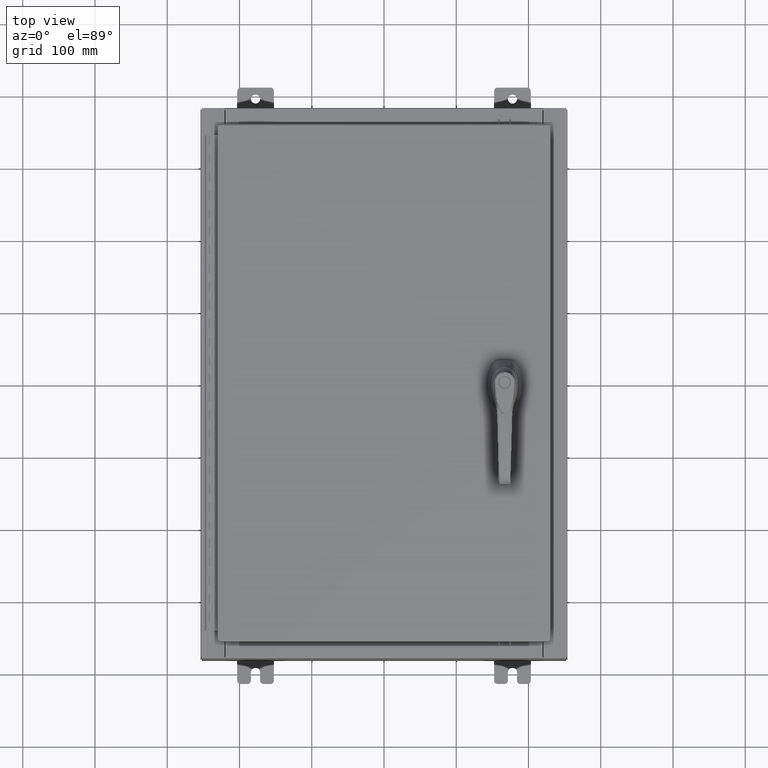
[diagram: clean part render]
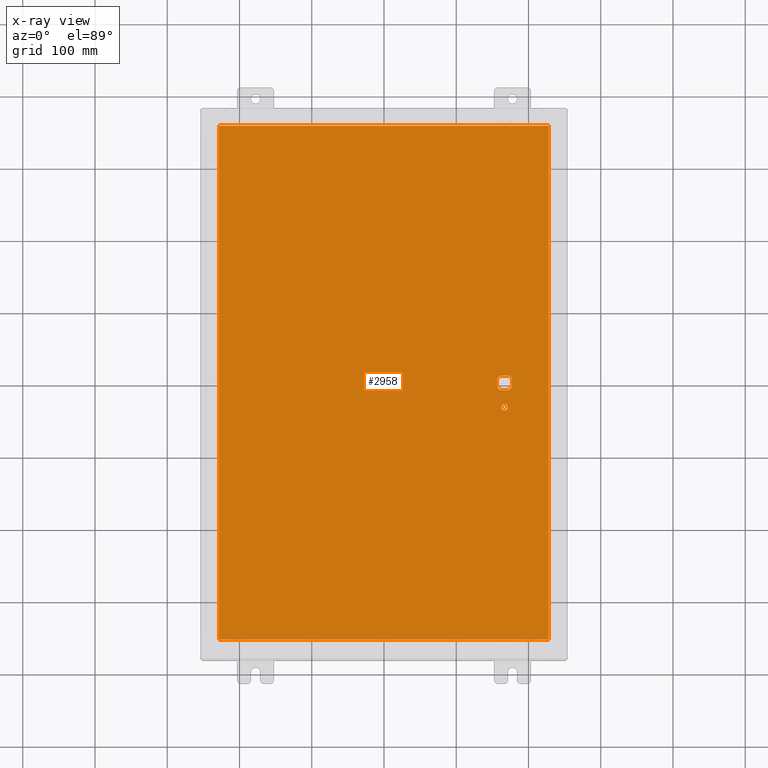
[diagram: x-ray — body ghosted, one internal face saturated and labeled with its STEP entity id]
A machine part, top view, then the same camera in x-ray: the body is ghosted and one INTERNAL B-rep face — a face not visible from any outside direction — is saturated and labeled: STEP entity #2958.
In plain terms, the highlighted planar face has unit normal (0, 0, -1).
Its self-contained STEP definition (entity closure, byte-faithful):
#253 = VERTEX_POINT ( 'NONE', #98581 ) ;
#757 = CARTESIAN_POINT ( 'NONE',  ( 6.578000000000000300, 0.0000000000000000000, -0.07470000000000003000 ) ) ;
#2958 = ADVANCED_FACE ( 'NONE', ( #58299, #52591, #76732 ), #44896, .T. ) ;
#3672 = CARTESIAN_POINT ( 'NONE',  ( 6.749500000000001200, -1.338000000000000100, -0.07470000000000003000 ) ) ;
#4334 = EDGE_CURVE ( 'NONE', #253, #69454, #114709, .T. ) ;
#4936 = VECTOR ( 'NONE', #6776, 39.37007874015748100 ) ;
#6776 = DIRECTION ( 'NONE',  ( 0.0000000000000000000, -1.000000000000000000, 0.0000000000000000000 ) ) ;
#7493 = ORIENTED_EDGE ( 'NONE', *, *, #8429, .T. ) ;
#8429 = EDGE_CURVE ( 'NONE', #89478, #253, #117313, .T. ) ;
#8764 = DIRECTION ( 'NONE',  ( -1.000000000000000000, 0.0000000000000000000, 0.0000000000000000000 ) ) ;
#9222 = CIRCLE ( 'NONE', #43692, 0.4499999999999156900 ) ;
#9872 = DIRECTION ( 'NONE',  ( -1.000000000000000000, 0.0000000000000000000, 0.0000000000000000000 ) ) ;
#13271 = LINE ( 'NONE', #47715, #85445 ) ;
#13378 = AXIS2_PLACEMENT_3D ( 'NONE', #117139, #62978, #8764 ) ;
#13846 = ORIENTED_EDGE ( 'NONE', *, *, #4334, .T. ) ;
#14798 = VERTEX_POINT ( 'NONE', #114743 ) ;
#15091 = DIRECTION ( 'NONE',  ( -0.0000000000000000000, -0.0000000000000000000, 1.000000000000000000 ) ) ;
#15869 = CARTESIAN_POINT ( 'NONE',  ( 6.175000000000075300, 0.0000000000000000000, -0.07470000000000003000 ) ) ;
#17989 = DIRECTION ( 'NONE',  ( -1.000000000000000000, 0.0000000000000000000, -0.0000000000000000000 ) ) ;
#19645 = CIRCLE ( 'NONE', #93595, 0.1715000000000000700 ) ;
#20171 = CARTESIAN_POINT ( 'NONE',  ( 0.0000000000000000000, 0.4029999999999252000, -0.07470000000000003000 ) ) ;
#21082 = DIRECTION ( 'NONE',  ( 0.0000000000000000000, -1.000000000000000000, 0.0000000000000000000 ) ) ;
#21316 = VECTOR ( 'NONE', #34606, 39.37007874015748100 ) ;
#24656 = EDGE_LOOP ( 'NONE', ( #88125, #110943, #117227, #102709, #106809, #102589, #7493, #13846 ) ) ;
#26691 = DIRECTION ( 'NONE',  ( -0.0000000000000000000, -0.0000000000000000000, 1.000000000000000000 ) ) ;
#28300 = EDGE_CURVE ( 'NONE', #58569, #99776, #68863, .T. ) ;
#28898 = CARTESIAN_POINT ( 'NONE',  ( -8.990299999999996000, -14.00629999999999600, -0.07470000000000000300 ) ) ;
#29022 = LINE ( 'NONE', #15869, #4936 ) ;
#29412 = VERTEX_POINT ( 'NONE', #94577 ) ;
#30600 = ORIENTED_EDGE ( 'NONE', *, *, #101388, .F. ) ;
#31012 = DIRECTION ( 'NONE',  ( 1.000000000000000000, -0.0000000000000000000, -0.0000000000000000000 ) ) ;
#32361 = CARTESIAN_POINT ( 'NONE',  ( 6.578000000000000300, 0.0000000000000000000, -0.07470000000000003000 ) ) ;
#32512 = EDGE_LOOP ( 'NONE', ( #103044, #30600, #70485, #74865 ) ) ;
#33312 = DIRECTION ( 'NONE',  ( -0.0000000000000000000, -0.0000000000000000000, 1.000000000000000000 ) ) ;
#33365 = CARTESIAN_POINT ( 'NONE',  ( 6.778227370756310300, 0.4029999999999250300, -0.07470000000000003000 ) ) ;
#34606 = DIRECTION ( 'NONE',  ( 1.000000000000000000, 0.0000000000000000000, 0.0000000000000000000 ) ) ;
#40575 = EDGE_CURVE ( 'NONE', #63951, #44774, #19645, .T. ) ;
#40617 = AXIS2_PLACEMENT_3D ( 'NONE', #757, #64067, #9872 ) ;
#41114 = EDGE_CURVE ( 'NONE', #69454, #111084, #57813, .T. ) ;
#41437 = DIRECTION ( 'NONE',  ( -1.000000000000000000, 8.881784197001256300E-016, 0.0000000000000000000 ) ) ;
#41940 = VECTOR ( 'NONE', #97984, 39.37007874015748100 ) ;
#43692 = AXIS2_PLACEMENT_3D ( 'NONE', #69305, #15091, #78411 ) ;
#44280 = CARTESIAN_POINT ( 'NONE',  ( 6.377772629243691100, 0.4029999999999252000, -0.07470000000000003000 ) ) ;
#44744 = VECTOR ( 'NONE', #21082, 39.37007874015748100 ) ;
#44774 = VERTEX_POINT ( 'NONE', #3672 ) ;
#44896 = PLANE ( 'NONE',  #52294 ) ;
#45921 = DIRECTION ( 'NONE',  ( -1.000000000000000000, -0.0000000000000000000, -0.0000000000000000000 ) ) ;
#47715 = CARTESIAN_POINT ( 'NONE',  ( 6.980999999999926200, 0.0000000000000000000, -0.07470000000000003000 ) ) ;
#50922 = VECTOR ( 'NONE', #31012, 39.37007874015748100 ) ;
#51404 = CARTESIAN_POINT ( 'NONE',  ( 6.980999999999926200, 0.2002273707563080300, -0.07470000000000003000 ) ) ;
#52294 = AXIS2_PLACEMENT_3D ( 'NONE', #63117, #72220, #17989 ) ;
#52591 = FACE_OUTER_BOUND ( 'NONE', #32512, .T. ) ;
#53726 = LINE ( 'NONE', #76116, #50922 ) ;
#54910 = CARTESIAN_POINT ( 'NONE',  ( 6.175000000000075300, -0.2002273707563079800, -0.07470000000000003000 ) ) ;
#55108 = VERTEX_POINT ( 'NONE', #64147 ) ;
#56943 = LINE ( 'NONE', #109192, #80976 ) ;
#57813 = CIRCLE ( 'NONE', #40617, 0.4499999999999156900 ) ;
#58299 = FACE_BOUND ( 'NONE', #73527, .T. ) ;
#58569 = VERTEX_POINT ( 'NONE', #104214 ) ;
#60497 = CARTESIAN_POINT ( 'NONE',  ( 6.980999999999926200, -0.2002273707563080300, -0.07470000000000003000 ) ) ;
#61499 = CARTESIAN_POINT ( 'NONE',  ( 0.0000000000000000000, -0.4029999999999252000, -0.07470000000000003000 ) ) ;
#62978 = DIRECTION ( 'NONE',  ( -0.0000000000000000000, -0.0000000000000000000, 1.000000000000000000 ) ) ;
#63117 = CARTESIAN_POINT ( 'NONE',  ( 0.0000000000000000000, 0.0000000000000000000, -0.07470000000000000300 ) ) ;
#63148 = LINE ( 'NONE', #70731, #41940 ) ;
#63951 = VERTEX_POINT ( 'NONE', #74996 ) ;
#64067 = DIRECTION ( 'NONE',  ( -0.0000000000000000000, -0.0000000000000000000, 1.000000000000000000 ) ) ;
#64147 = CARTESIAN_POINT ( 'NONE',  ( 6.175000000000075300, 0.2002273707563080300, -0.07470000000000003000 ) ) ;
#65008 = EDGE_CURVE ( 'NONE', #29412, #58569, #56943, .T. ) ;
#65260 = DIRECTION ( 'NONE',  ( -1.000000000000000000, 0.0000000000000000000, 0.0000000000000000000 ) ) ;
#65526 = CIRCLE ( 'NONE', #13378, 0.1715000000000000700 ) ;
#66502 = CARTESIAN_POINT ( 'NONE',  ( 6.778227370756310300, -0.4029999999999252000, -0.07470000000000003000 ) ) ;
#68863 = LINE ( 'NONE', #110854, #44744 ) ;
#69305 = CARTESIAN_POINT ( 'NONE',  ( 6.578000000000000300, 0.0000000000000000000, -0.07470000000000003000 ) ) ;
#69454 = VERTEX_POINT ( 'NONE', #66502 ) ;
#70485 = ORIENTED_EDGE ( 'NONE', *, *, #28300, .F. ) ;
#70731 = CARTESIAN_POINT ( 'NONE',  ( 8.990300000000001300, -14.00629999999999800, -0.07470000000000076600 ) ) ;
#71537 = AXIS2_PLACEMENT_3D ( 'NONE', #32361, #95615, #41437 ) ;
#72220 = DIRECTION ( 'NONE',  ( 0.0000000000000000000, 0.0000000000000000000, -1.000000000000000000 ) ) ;
#73527 = EDGE_LOOP ( 'NONE', ( #83289, #91468 ) ) ;
#74865 = ORIENTED_EDGE ( 'NONE', *, *, #65008, .F. ) ;
#74996 = CARTESIAN_POINT ( 'NONE',  ( 6.406500000000000300, -1.338000000000000100, -0.07470000000000003000 ) ) ;
#76116 = CARTESIAN_POINT ( 'NONE',  ( -8.990299999999996000, -14.00629999999999800, -0.07469999999999800400 ) ) ;
#76732 = FACE_BOUND ( 'NONE', #24656, .T. ) ;
#76802 = EDGE_CURVE ( 'NONE', #87197, #55108, #108275, .T. ) ;
#78411 = DIRECTION ( 'NONE',  ( -1.000000000000000000, 0.0000000000000000000, 0.0000000000000000000 ) ) ;
#78992 = EDGE_CURVE ( 'NONE', #44774, #63951, #65526, .T. ) ;
#80833 = CARTESIAN_POINT ( 'NONE',  ( 6.578000000000000300, -1.338000000000000100, -0.07470000000000003000 ) ) ;
#80976 = VECTOR ( 'NONE', #45921, 39.37007874015748100 ) ;
#82777 = VECTOR ( 'NONE', #65260, 39.37007874015748100 ) ;
#83289 = ORIENTED_EDGE ( 'NONE', *, *, #78992, .T. ) ;
#83767 = VERTEX_POINT ( 'NONE', #33365 ) ;
#85445 = VECTOR ( 'NONE', #111008, 39.37007874015748100 ) ;
#87197 = VERTEX_POINT ( 'NONE', #44280 ) ;
#87442 = CARTESIAN_POINT ( 'NONE',  ( 6.578000000000000300, 0.0000000000000000000, -0.07470000000000003000 ) ) ;
#88125 = ORIENTED_EDGE ( 'NONE', *, *, #41114, .T. ) ;
#88812 = VERTEX_POINT ( 'NONE', #51404 ) ;
#89478 = VERTEX_POINT ( 'NONE', #54910 ) ;
#89892 = DIRECTION ( 'NONE',  ( -1.000000000000000000, 0.0000000000000000000, 0.0000000000000000000 ) ) ;
#91468 = ORIENTED_EDGE ( 'NONE', *, *, #40575, .T. ) ;
#93015 = EDGE_CURVE ( 'NONE', #14798, #29412, #63148, .T. ) ;
#93595 = AXIS2_PLACEMENT_3D ( 'NONE', #80833, #26691, #89892 ) ;
#94132 = EDGE_CURVE ( 'NONE', #88812, #83767, #9222, .T. ) ;
#94464 = EDGE_CURVE ( 'NONE', #83767, #87197, #109675, .T. ) ;
#94577 = CARTESIAN_POINT ( 'NONE',  ( 8.990299999999999500, 14.00629999999999800, -0.07470000000000000300 ) ) ;
#95615 = DIRECTION ( 'NONE',  ( -0.0000000000000000000, -0.0000000000000000000, 1.000000000000000000 ) ) ;
#96568 = DIRECTION ( 'NONE',  ( -1.000000000000000000, 0.0000000000000000000, 0.0000000000000000000 ) ) ;
#97984 = DIRECTION ( 'NONE',  ( 0.0000000000000000000, 1.000000000000000000, 0.0000000000000000000 ) ) ;
#98581 = CARTESIAN_POINT ( 'NONE',  ( 6.377772629243691100, -0.4029999999999250300, -0.07470000000000003000 ) ) ;
#99776 = VERTEX_POINT ( 'NONE', #28898 ) ;
#101388 = EDGE_CURVE ( 'NONE', #99776, #14798, #53726, .T. ) ;
#102589 = ORIENTED_EDGE ( 'NONE', *, *, #107391, .T. ) ;
#102709 = ORIENTED_EDGE ( 'NONE', *, *, #94464, .T. ) ;
#103044 = ORIENTED_EDGE ( 'NONE', *, *, #93015, .F. ) ;
#103856 = AXIS2_PLACEMENT_3D ( 'NONE', #87442, #33312, #96568 ) ;
#104214 = CARTESIAN_POINT ( 'NONE',  ( -8.990299999999997700, 14.00629999999999800, -0.07470000000000000300 ) ) ;
#106809 = ORIENTED_EDGE ( 'NONE', *, *, #76802, .T. ) ;
#107391 = EDGE_CURVE ( 'NONE', #55108, #89478, #29022, .T. ) ;
#108275 = CIRCLE ( 'NONE', #103856, 0.4499999999999156900 ) ;
#109192 = CARTESIAN_POINT ( 'NONE',  ( 8.990300000000001300, 14.00629999999999800, -0.07470000000000019700 ) ) ;
#109675 = LINE ( 'NONE', #20171, #82777 ) ;
#110372 = EDGE_CURVE ( 'NONE', #88812, #111084, #13271, .T. ) ;
#110854 = CARTESIAN_POINT ( 'NONE',  ( -8.990299999999997700, 14.00630000000000100, -0.07470000000000019700 ) ) ;
#110943 = ORIENTED_EDGE ( 'NONE', *, *, #110372, .F. ) ;
#111008 = DIRECTION ( 'NONE',  ( 0.0000000000000000000, -1.000000000000000000, 0.0000000000000000000 ) ) ;
#111084 = VERTEX_POINT ( 'NONE', #60497 ) ;
#114709 = LINE ( 'NONE', #61499, #21316 ) ;
#114743 = CARTESIAN_POINT ( 'NONE',  ( 8.990300000000001300, -14.00629999999999800, -0.07470000000000000300 ) ) ;
#117139 = CARTESIAN_POINT ( 'NONE',  ( 6.578000000000000300, -1.338000000000000100, -0.07470000000000003000 ) ) ;
#117227 = ORIENTED_EDGE ( 'NONE', *, *, #94132, .T. ) ;
#117313 = CIRCLE ( 'NONE', #71537, 0.4499999999999156900 ) ;